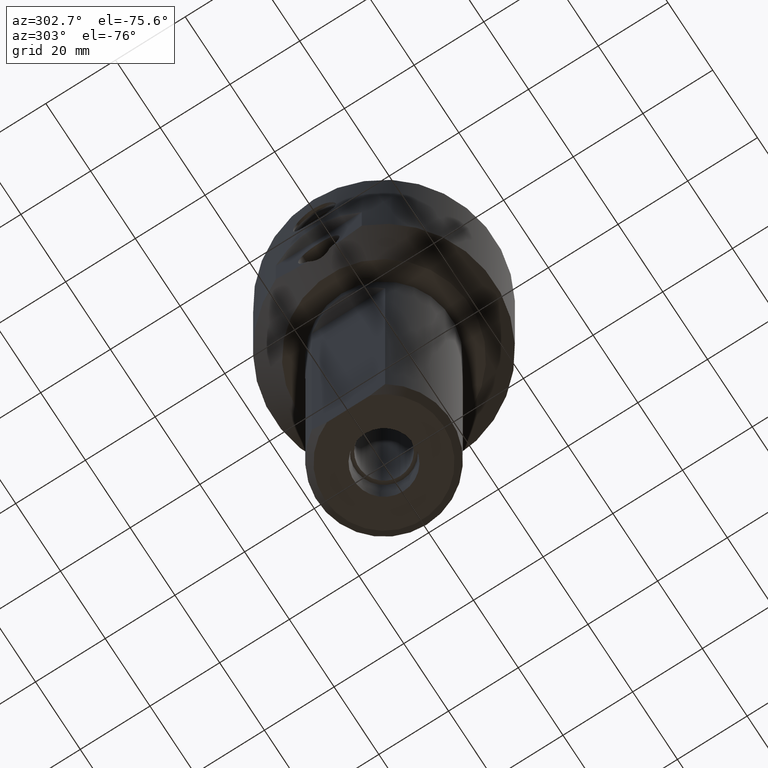
[diagram: clean part render]
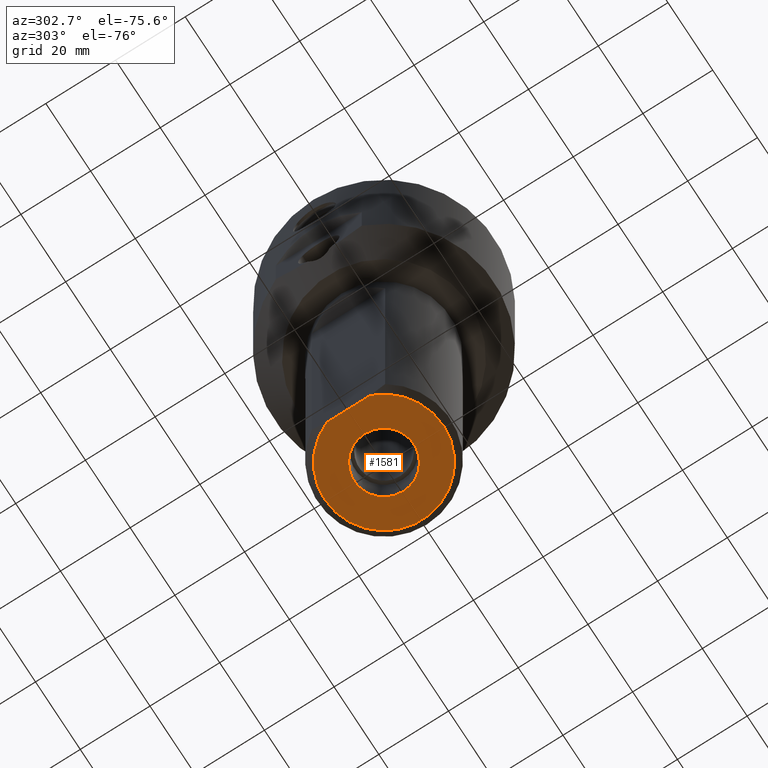
[diagram: same view with one face highlighted and labeled with its STEP entity id]
A machine part, auxiliary view. The second image highlights one B-rep face of the part: STEP entity #1581.
In plain terms, the highlighted planar face has unit normal (0, 0, -1).
Its self-contained STEP definition (entity closure, byte-faithful):
#149 = DIRECTION ( 'NONE',  ( -1.000000000000000000, 0.0000000000000000000, 0.0000000000000000000 ) ) ;
#264 = DIRECTION ( 'NONE',  ( -0.0000000000000000000, -0.0000000000000000000, -1.000000000000000000 ) ) ;
#290 = EDGE_LOOP ( 'NONE', ( #1508, #709 ) ) ;
#296 = PLANE ( 'NONE',  #612 ) ;
#343 = EDGE_LOOP ( 'NONE', ( #1176 ) ) ;
#381 = CARTESIAN_POINT ( 'NONE',  ( -8.572499999999999787, 0.0000000000000000000, -152.3999999999999773 ) ) ;
#392 = LINE ( 'NONE', #1564, #1325 ) ;
#425 = DIRECTION ( 'NONE',  ( 0.0000000000000000000, 0.0000000000000000000, -1.000000000000000000 ) ) ;
#428 = AXIS2_PLACEMENT_3D ( 'NONE', #1651, #628, #1149 ) ;
#434 = CARTESIAN_POINT ( 'NONE',  ( 0.0000000000000000000, 0.0000000000000000000, -152.3999999999999773 ) ) ;
#442 = VERTEX_POINT ( 'NONE', #1543 ) ;
#554 = CARTESIAN_POINT ( 'NONE',  ( -15.87500000000000355, 6.206158231949932436, -152.3999999999999773 ) ) ;
#612 = AXIS2_PLACEMENT_3D ( 'NONE', #434, #425, #1566 ) ;
#628 = DIRECTION ( 'NONE',  ( 0.0000000000000000000, 0.0000000000000000000, -1.000000000000000000 ) ) ;
#706 = DIRECTION ( 'NONE',  ( -0.0000000000000000000, 1.000000000000000000, -0.0000000000000000000 ) ) ;
#709 = ORIENTED_EDGE ( 'NONE', *, *, #989, .T. ) ;
#733 = EDGE_CURVE ( 'NONE', #442, #1572, #392, .T. ) ;
#881 = CIRCLE ( 'NONE', #1589, 8.572499999999999787 ) ;
#909 = CARTESIAN_POINT ( 'NONE',  ( 0.0000000000000000000, 0.0000000000000000000, -152.3999999999999773 ) ) ;
#972 = VERTEX_POINT ( 'NONE', #381 ) ;
#989 = EDGE_CURVE ( 'NONE', #1572, #442, #1461, .T. ) ;
#1029 = FACE_OUTER_BOUND ( 'NONE', #290, .T. ) ;
#1116 = FACE_BOUND ( 'NONE', #343, .T. ) ;
#1130 = EDGE_CURVE ( 'NONE', #972, #972, #881, .T. ) ;
#1149 = DIRECTION ( 'NONE',  ( -1.000000000000000000, 0.0000000000000000000, 0.0000000000000000000 ) ) ;
#1176 = ORIENTED_EDGE ( 'NONE', *, *, #1130, .F. ) ;
#1325 = VECTOR ( 'NONE', #706, 1000.000000000000000 ) ;
#1461 = CIRCLE ( 'NONE', #428, 17.04500000000000171 ) ;
#1508 = ORIENTED_EDGE ( 'NONE', *, *, #733, .T. ) ;
#1543 = CARTESIAN_POINT ( 'NONE',  ( -15.87500000000000355, -6.206158231949933324, -152.3999999999999773 ) ) ;
#1564 = CARTESIAN_POINT ( 'NONE',  ( -15.87500000000000355, -31.63500000000000512, -152.3999999999999773 ) ) ;
#1566 = DIRECTION ( 'NONE',  ( -1.000000000000000000, 0.0000000000000000000, -0.0000000000000000000 ) ) ;
#1572 = VERTEX_POINT ( 'NONE', #554 ) ;
#1581 = ADVANCED_FACE ( 'NONE', ( #1029, #1116 ), #296, .T. ) ;
#1589 = AXIS2_PLACEMENT_3D ( 'NONE', #909, #264, #149 ) ;
#1651 = CARTESIAN_POINT ( 'NONE',  ( 0.0000000000000000000, 0.0000000000000000000, -152.3999999999999773 ) ) ;